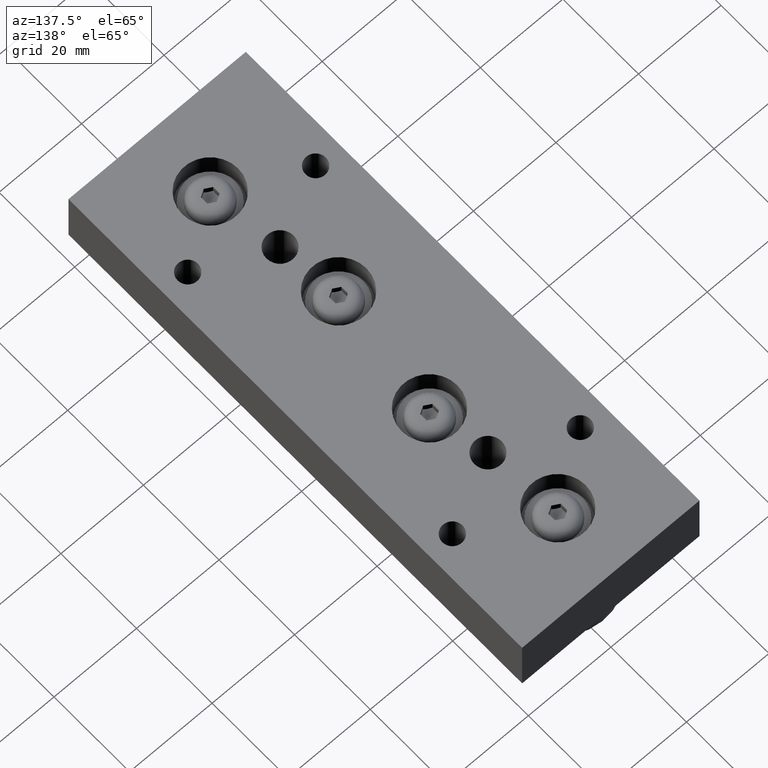
[diagram: clean part render]
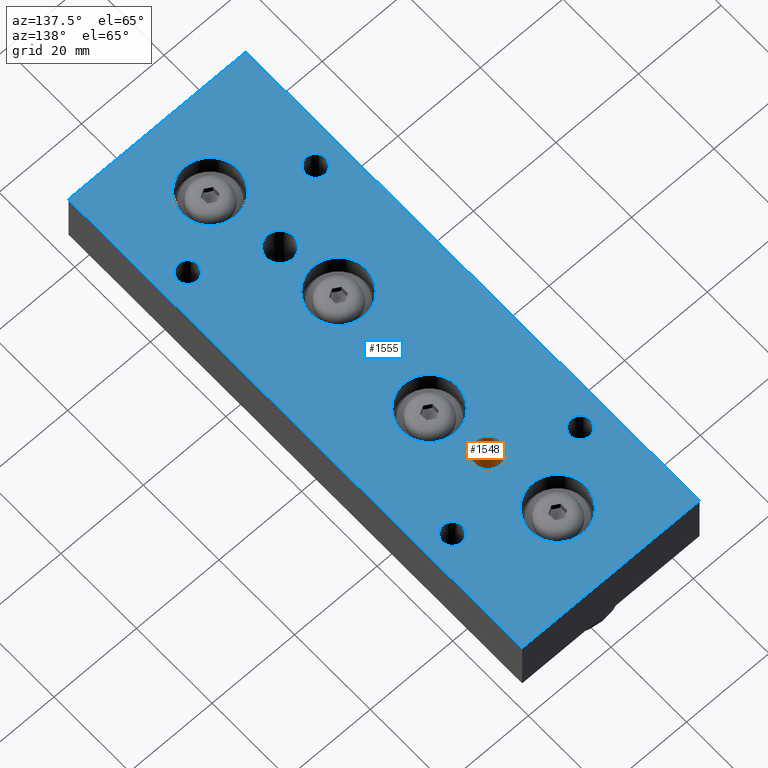
[diagram: same view with the hole feature highlighted: cylindrical wall and planar end face, labeled with their STEP entity ids]
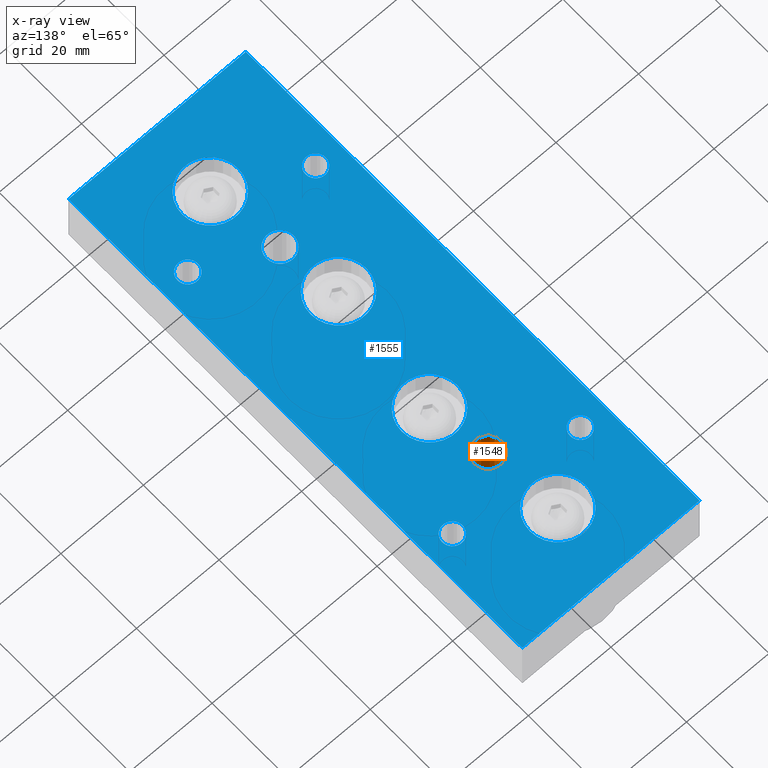
[diagram: x-ray of the same camera — body ghosted, the hole faces saturated]
A machine part, auxiliary view. The highlighted faces form one hole feature of diameter 6.647 mm: the cylindrical wall (entity #1548, orange) and its adjacent planar end face (entity #1555, blue) — they share a circular edge in the B-rep.
The next image is the same camera in x-ray (body ghosted, the hole faces saturated) — the bore reads through the body.
Wall:
#138=LINE('',#2674,#240);
#240=VECTOR('',#2158,3.3235);
#342=CYLINDRICAL_SURFACE('',#1884,3.3235);
#430=FACE_OUTER_BOUND('',#533,.T.);
#533=EDGE_LOOP('',(#1137,#1138,#1139,#1140));
#682=CIRCLE('',#1885,3.3235);
#683=CIRCLE('',#1886,3.3235);
#772=VERTEX_POINT('',#2671);
#773=VERTEX_POINT('',#2673);
#918=EDGE_CURVE('',#772,#772,#682,.T.);
#919=EDGE_CURVE('',#772,#773,#138,.T.);
#920=EDGE_CURVE('',#773,#773,#683,.T.);
#1137=ORIENTED_EDGE('',*,*,#918,.F.);
#1138=ORIENTED_EDGE('',*,*,#919,.T.);
#1139=ORIENTED_EDGE('',*,*,#920,.F.);
#1140=ORIENTED_EDGE('',*,*,#919,.F.);
#1548=ADVANCED_FACE('',(#430),#342,.F.);
#1884=AXIS2_PLACEMENT_3D('',#2670,#2154,#2155);
#1885=AXIS2_PLACEMENT_3D('',#2672,#2156,#2157);
#1886=AXIS2_PLACEMENT_3D('',#2675,#2159,#2160);
#2154=DIRECTION('center_axis',(0.,1.,0.));
#2155=DIRECTION('ref_axis',(1.,0.,0.));
#2156=DIRECTION('center_axis',(0.,-1.,0.));
#2157=DIRECTION('ref_axis',(1.,0.,0.));
#2158=DIRECTION('',(0.,-1.,0.));
#2159=DIRECTION('center_axis',(0.,1.,0.));
#2160=DIRECTION('ref_axis',(1.,0.,0.));
#2670=CARTESIAN_POINT('Origin',(-6.47630097698008E-15,-120.851081023885,
27.5));
#2671=CARTESIAN_POINT('',(-3.32350000000001,7.5,27.5));
#2672=CARTESIAN_POINT('Origin',(-6.47630097698008E-15,7.5,27.5));
#2673=CARTESIAN_POINT('',(-3.32350000000001,-7.5,27.5));
#2674=CARTESIAN_POINT('',(-3.32350000000001,-120.851081023885,27.5));
#2675=CARTESIAN_POINT('Origin',(-6.47630097698008E-15,-7.5,27.5));
End face:
#145=LINE('',#2695,#247);
#147=LINE('',#2699,#249);
#149=LINE('',#2703,#251);
#151=LINE('',#2706,#253);
#247=VECTOR('',#2177,10.);
#249=VECTOR('',#2181,10.);
#251=VECTOR('',#2185,10.);
#253=VECTOR('',#2189,10.);
#382=FACE_BOUND('',#551,.T.);
#383=FACE_BOUND('',#552,.T.);
#384=FACE_BOUND('',#553,.T.);
#385=FACE_BOUND('',#554,.T.);
#386=FACE_BOUND('',#555,.T.);
#387=FACE_BOUND('',#556,.T.);
#388=FACE_BOUND('',#557,.T.);
#389=FACE_BOUND('',#558,.T.);
#390=FACE_BOUND('',#559,.T.);
#391=FACE_BOUND('',#560,.T.);
#437=FACE_OUTER_BOUND('',#550,.T.);
#550=EDGE_LOOP('',(#1175,#1176,#1177,#1178));
#551=EDGE_LOOP('',(#1179));
#552=EDGE_LOOP('',(#1180));
#553=EDGE_LOOP('',(#1181));
#554=EDGE_LOOP('',(#1182));
#555=EDGE_LOOP('',(#1183));
#556=EDGE_LOOP('',(#1184));
#557=EDGE_LOOP('',(#1185));
#558=EDGE_LOOP('',(#1186));
#559=EDGE_LOOP('',(#1187));
#560=EDGE_LOOP('',(#1188));
#660=CIRCLE('',#1848,6.75);
#664=CIRCLE('',#1855,6.75);
#668=CIRCLE('',#1862,6.75);
#672=CIRCLE('',#1869,6.75);
#674=CIRCLE('',#1873,2.4585);
#676=CIRCLE('',#1876,2.4585);
#678=CIRCLE('',#1879,2.4585);
#680=CIRCLE('',#1882,2.4585);
#682=CIRCLE('',#1885,3.3235);
#684=CIRCLE('',#1888,3.3235);
#750=VERTEX_POINT('',#2600);
#754=VERTEX_POINT('',#2613);
#758=VERTEX_POINT('',#2626);
#762=VERTEX_POINT('',#2639);
#764=VERTEX_POINT('',#2647);
#766=VERTEX_POINT('',#2653);
#768=VERTEX_POINT('',#2659);
#770=VERTEX_POINT('',#2665);
#772=VERTEX_POINT('',#2671);
#774=VERTEX_POINT('',#2677);
#780=VERTEX_POINT('',#2692);
#781=VERTEX_POINT('',#2694);
#782=VERTEX_POINT('',#2698);
#783=VERTEX_POINT('',#2702);
#884=EDGE_CURVE('',#750,#750,#660,.T.);
#890=EDGE_CURVE('',#754,#754,#664,.T.);
#896=EDGE_CURVE('',#758,#758,#668,.T.);
#902=EDGE_CURVE('',#762,#762,#672,.T.);
#906=EDGE_CURVE('',#764,#764,#674,.T.);
#909=EDGE_CURVE('',#766,#766,#676,.T.);
#912=EDGE_CURVE('',#768,#768,#678,.T.);
#915=EDGE_CURVE('',#770,#770,#680,.T.);
#918=EDGE_CURVE('',#772,#772,#682,.T.);
#921=EDGE_CURVE('',#774,#774,#684,.T.);
#929=EDGE_CURVE('',#781,#780,#145,.T.);
#931=EDGE_CURVE('',#782,#781,#147,.T.);
#933=EDGE_CURVE('',#783,#782,#149,.T.);
#935=EDGE_CURVE('',#780,#783,#151,.T.);
#1175=ORIENTED_EDGE('',*,*,#935,.T.);
#1176=ORIENTED_EDGE('',*,*,#933,.T.);
#1177=ORIENTED_EDGE('',*,*,#931,.T.);
#1178=ORIENTED_EDGE('',*,*,#929,.T.);
#1179=ORIENTED_EDGE('',*,*,#884,.T.);
#1180=ORIENTED_EDGE('',*,*,#890,.T.);
#1181=ORIENTED_EDGE('',*,*,#896,.T.);
#1182=ORIENTED_EDGE('',*,*,#902,.T.);
#1183=ORIENTED_EDGE('',*,*,#906,.T.);
#1184=ORIENTED_EDGE('',*,*,#909,.T.);
#1185=ORIENTED_EDGE('',*,*,#912,.T.);
#1186=ORIENTED_EDGE('',*,*,#915,.T.);
#1187=ORIENTED_EDGE('',*,*,#918,.T.);
#1188=ORIENTED_EDGE('',*,*,#921,.T.);
#1488=PLANE('',#1895);
#1555=ADVANCED_FACE('',(#437,#382,#383,#384,#385,#386,#387,#388,#389,#390,
#391),#1488,.T.);
#1848=AXIS2_PLACEMENT_3D('',#2601,#2070,#2071);
#1855=AXIS2_PLACEMENT_3D('',#2614,#2086,#2087);
#1862=AXIS2_PLACEMENT_3D('',#2627,#2102,#2103);
#1869=AXIS2_PLACEMENT_3D('',#2640,#2118,#2119);
#1873=AXIS2_PLACEMENT_3D('',#2648,#2128,#2129);
#1876=AXIS2_PLACEMENT_3D('',#2654,#2135,#2136);
#1879=AXIS2_PLACEMENT_3D('',#2660,#2142,#2143);
#1882=AXIS2_PLACEMENT_3D('',#2666,#2149,#2150);
#1885=AXIS2_PLACEMENT_3D('',#2672,#2156,#2157);
#1888=AXIS2_PLACEMENT_3D('',#2678,#2163,#2164);
#1895=AXIS2_PLACEMENT_3D('',#2707,#2190,#2191);
#2070=DIRECTION('center_axis',(0.,-1.,0.));
#2071=DIRECTION('ref_axis',(1.,0.,0.));
#2086=DIRECTION('center_axis',(0.,-1.,0.));
#2087=DIRECTION('ref_axis',(1.,0.,0.));
#2102=DIRECTION('center_axis',(0.,-1.,0.));
#2103=DIRECTION('ref_axis',(1.,0.,0.));
#2118=DIRECTION('center_axis',(0.,-1.,0.));
#2119=DIRECTION('ref_axis',(1.,0.,0.));
#2128=DIRECTION('center_axis',(0.,-1.,0.));
#2129=DIRECTION('ref_axis',(1.,0.,0.));
#2135=DIRECTION('center_axis',(0.,-1.,0.));
#2136=DIRECTION('ref_axis',(1.,0.,0.));
#2142=DIRECTION('center_axis',(0.,-1.,0.));
#2143=DIRECTION('ref_axis',(1.,0.,0.));
#2149=DIRECTION('center_axis',(0.,-1.,0.));
#2150=DIRECTION('ref_axis',(1.,0.,0.));
#2156=DIRECTION('center_axis',(0.,-1.,0.));
#2157=DIRECTION('ref_axis',(1.,0.,0.));
#2163=DIRECTION('center_axis',(0.,-1.,0.));
#2164=DIRECTION('ref_axis',(1.,0.,0.));
#2177=DIRECTION('',(1.85037170770859E-16,0.,-1.));
#2181=DIRECTION('',(1.,0.,-4.13106241720989E-16));
#2185=DIRECTION('',(-7.40148683083438E-17,0.,1.));
#2189=DIRECTION('',(-1.,0.,-4.13106241720988E-16));
#2190=DIRECTION('center_axis',(0.,1.,0.));
#2191=DIRECTION('ref_axis',(0.,0.,1.));
#2600=CARTESIAN_POINT('',(-8.55,7.5,14.));
#2601=CARTESIAN_POINT('Origin',(-1.8,7.5,14.));
#2613=CARTESIAN_POINT('',(-4.95,7.5,44.));
#2614=CARTESIAN_POINT('Origin',(1.8,7.5,44.));
#2626=CARTESIAN_POINT('',(-4.95,7.5,-14.));
#2627=CARTESIAN_POINT('Origin',(1.8,7.5,-14.));
#2639=CARTESIAN_POINT('',(-8.55,7.5,-44.));
#2640=CARTESIAN_POINT('Origin',(-1.8,7.5,-44.));
#2647=CARTESIAN_POINT('',(13.0415,7.5,35.));
#2648=CARTESIAN_POINT('Origin',(15.5,7.5,35.));
#2653=CARTESIAN_POINT('',(-17.9585,7.5,-35.));
#2654=CARTESIAN_POINT('Origin',(-15.5,7.5,-35.));
#2659=CARTESIAN_POINT('',(13.0415,7.5,-35.));
#2660=CARTESIAN_POINT('Origin',(15.5,7.5,-35.));
#2665=CARTESIAN_POINT('',(-17.9585,7.5,35.));
#2666=CARTESIAN_POINT('Origin',(-15.5,7.5,35.));
#2671=CARTESIAN_POINT('',(-3.32350000000001,7.5,27.5));
#2672=CARTESIAN_POINT('Origin',(-6.47630097698008E-15,7.5,27.5));
#2677=CARTESIAN_POINT('',(-3.32350000000001,7.5,-27.5));
#2678=CARTESIAN_POINT('Origin',(-6.47630097698008E-15,7.5,-27.5));
#2692=CARTESIAN_POINT('',(21.5,7.5,-60.));
#2694=CARTESIAN_POINT('',(21.5,7.5,60.));
#2695=CARTESIAN_POINT('',(21.5,7.5,60.));
#2698=CARTESIAN_POINT('',(-21.5,7.5,60.));
#2699=CARTESIAN_POINT('',(-21.5,7.5,60.));
#2702=CARTESIAN_POINT('',(-21.5,7.5,-60.));
#2703=CARTESIAN_POINT('',(-21.5,7.5,-60.));
#2706=CARTESIAN_POINT('',(21.5,7.5,-60.));
#2707=CARTESIAN_POINT('Origin',(-8.88178419700125E-15,7.5,-8.88178419700125E-15));